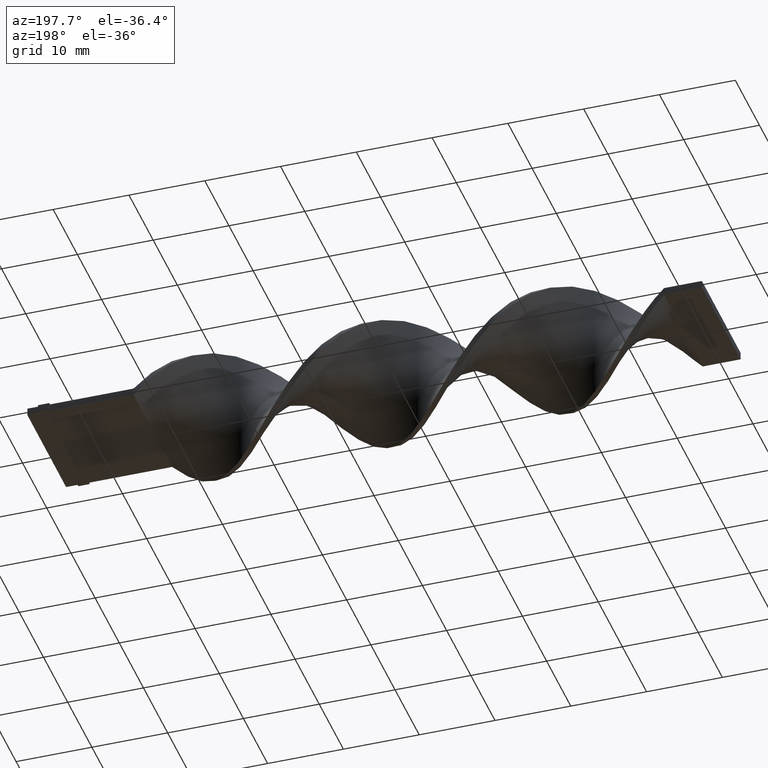
[diagram: clean part render]
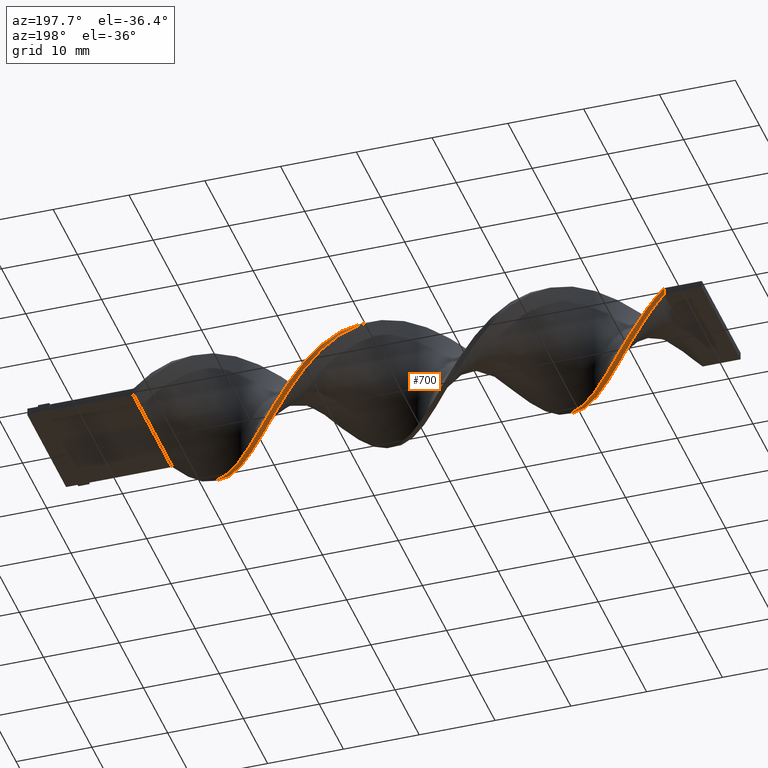
[diagram: same view with one face highlighted and labeled with its STEP entity id]
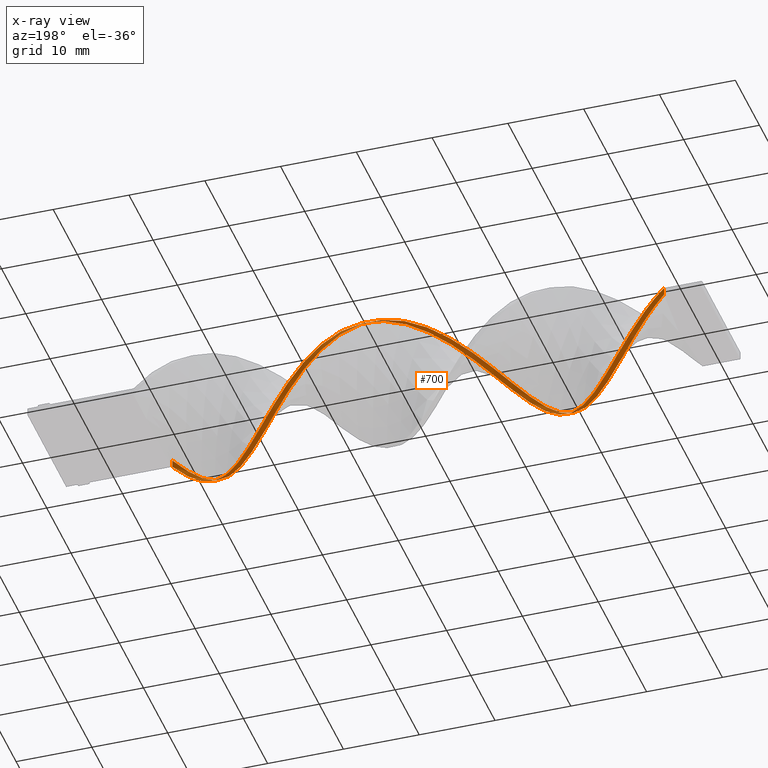
[diagram: x-ray of the same camera — body ghosted, the highlighted face saturated]
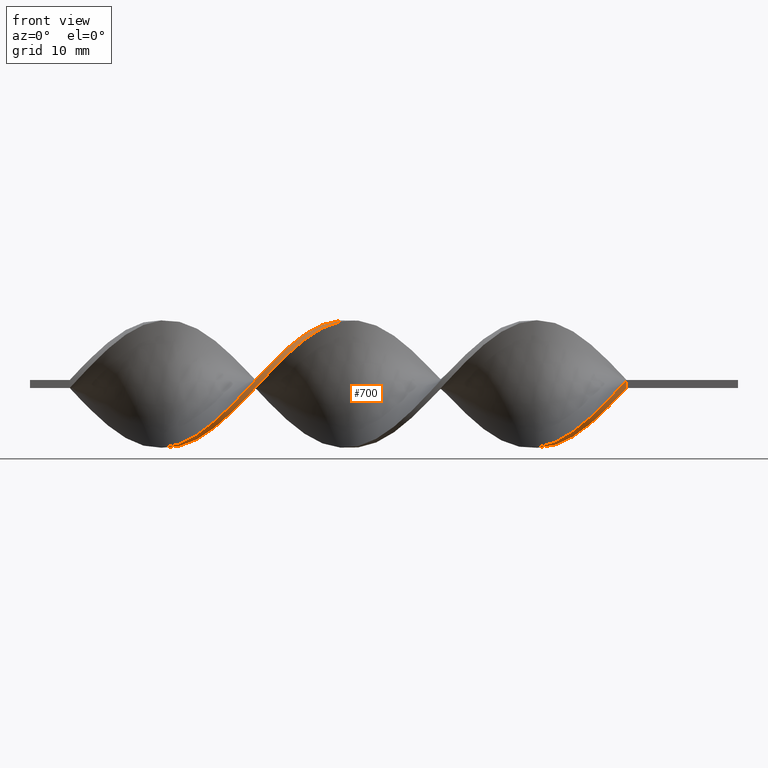
[diagram: same view with one face highlighted and labeled with its STEP entity id]
A machine part, auxiliary view. The second image highlights one B-rep face of the part: STEP entity #700.
The next image is the same camera in x-ray: the body ghosted, the highlighted face saturated — about 5% of this face is hidden behind the body in this view.
A second angle (front view) of the same face is appended — the face is thin or edge-on in the first view.
In plain terms, the highlighted face is a freeform B-spline surface patch.
Its self-contained STEP definition (entity closure, byte-faithful):
#3 = CARTESIAN_POINT ( 'NONE',  ( -54.38461538461538680, -4.966940480229633081, 6.366063081919214106 ) ) ;
#6 =( BOUNDED_CURVE ( )  B_SPLINE_CURVE ( 2, ( #1060, #1177, #458, #1305, #667, #1043, #75, #1443, #1298, #930, #185, #1552, #1533, #685, #1412, #180, #940, #296, #331, #1546, #679, #814, #1189, #1049, #62, #790, #574, #1055, #310, #1311, #49, #795, #1560, #1293, #175, #920, #1422, #1318, #1181, #557, #68, #444, #663, #449, #925, #799, #566, #320, #1196, #546, #805, #1072, #1240, #695, #95, #1215, #726, #593, #237, #1226, #972, #228, #1205, #734, #827, #707, #352, #102, #1603, #471, #1339, #119, #848, #580, #1092, #1460, #863, #857, #1120 ),
 .UNSPECIFIED., .F., .T. ) 
 B_SPLINE_CURVE_WITH_KNOTS ( ( 3, 2, 2, 2, 2, 2, 2, 2, 2, 2, 2, 2, 2, 2, 2, 2, 2, 2, 2, 2, 2, 2, 2, 2, 2, 2, 2, 2, 2, 2, 2, 2, 2, 2, 2, 2, 2, 2, 2, 3 ),
 ( 0.000000000000000000, 0.01923076923076923184, 0.03846153846153846367, 0.05769230769230768857, 0.07692307692307692735, 0.09615384615384615918, 0.1153846153846153771, 0.1346153846153846090, 0.1538461538461538547, 0.1730769230769230449, 0.1923076923076923184, 0.2115384615384615363, 0.2307692307692307543, 0.2500000000000000000, 0.2692307692307692180, 0.2884615384615384359, 0.3076923076923077094, 0.3269230769230769273, 0.3461538461538460898, 0.3653846153846153633, 0.3846153846153846367, 0.4038461538461539102, 0.4230769230769230727, 0.4423076923076922906, 0.4615384615384615086, 0.4807692307692307820, 0.5000000000000000000, 0.5192307692307692735, 0.5384615384615384359, 0.5576923076923077094, 0.5769230769230768718, 0.5961538461538461453, 0.6153846153846154188, 0.6346153846153845812, 0.6538461538461538547, 0.6730769230769230171, 0.6923076923076921796, 0.7115384615384615641, 0.7307692307692307265, 0.7500000000000000000 ),
 .UNSPECIFIED. ) 
 CURVE ( )  GEOMETRIC_REPRESENTATION_ITEM ( )  RATIONAL_B_SPLINE_CURVE ( ( 1.000000000000000000, 0.9927088740980539727, 1.000000000000000000, 0.9927088740980539727, 1.000000000000000000, 0.9927088740980539727, 1.000000000000000000, 0.9927088740980539727, 1.000000000000000000, 0.9927088740980539727, 1.000000000000000000, 0.9927088740980539727, 1.000000000000000000, 0.9927088740980539727, 1.000000000000000000, 0.9927088740980539727, 1.000000000000000000, 0.9927088740980539727, 1.000000000000000000, 0.9927088740980539727, 1.000000000000000000, 0.9927088740980539727, 1.000000000000000000, 0.9927088740980539727, 1.000000000000000000, 0.9927088740980539727, 1.000000000000000000, 0.9927088740980539727, 1.000000000000000000, 0.9927088740980539727, 1.000000000000000000, 0.9927088740980539727, 1.000000000000000000, 0.9927088740980539727, 1.000000000000000000, 0.9927088740980539727, 1.000000000000000000, 0.9927088740980539727, 1.000000000000000000, 0.9927088740980539727, 1.000000000000000000, 0.9927088740980539727, 1.000000000000000000, 0.9927088740980539727, 1.000000000000000000, 0.9927088740980539727, 1.000000000000000000, 0.9927088740980539727, 1.000000000000000000, 0.9927088740980539727, 1.000000000000000000, 0.9927088740980539727, 1.000000000000000000, 0.9927088740980539727, 1.000000000000000000, 0.9927088740980539727, 1.000000000000000000, 0.9927088740980539727, 1.000000000000000000, 0.9927088740980539727, 1.000000000000000000, 0.9927088740980539727, 1.000000000000000000, 0.9927088740980539727, 1.000000000000000000, 0.9927088740980539727, 1.000000000000000000, 0.9927088740980539727, 1.000000000000000000, 0.9927088740980539727, 1.000000000000000000, 0.9927088740980539727, 1.000000000000000000, 0.9927088740980539727, 1.000000000000000000, 0.9927088740980539727, 1.000000000000000000, 0.9927088740980539727, 1.000000000000000000 ) ) 
 REPRESENTATION_ITEM ( '' )  );
#8 = CARTESIAN_POINT ( 'NONE',  ( -23.87179487179487580, -1.439550348419958326, -7.945121250898724341 ) ) ;
#17 = CARTESIAN_POINT ( 'NONE',  ( -42.71794871794872250, 5.656524656248411276, 5.679236640011910531 ) ) ;
#20 = ORIENTED_EDGE ( 'NONE', *, *, #406, .T. ) ;
#23 = CARTESIAN_POINT ( 'NONE',  ( -71.43589743589743080, -1.460647879091614421, -7.881402652656771757 ) ) ;
#27 = CARTESIAN_POINT ( 'NONE',  ( -79.51282051282051100, 6.918345831001864177, -4.163381781650299374 ) ) ;
#36 = CARTESIAN_POINT ( 'NONE',  ( -71.43589743589743080, -0.4679390049935603924, -8.001939332912092695 ) ) ;
#46 = CARTESIAN_POINT ( 'NONE',  ( -41.82051282051281760, 6.346108832267184141, 4.992410198104613173 ) ) ;
#49 = CARTESIAN_POINT ( 'NONE',  ( -40.92307692307691980, 6.851286619203793116, 4.160513389176752952 ) ) ;
#54 = CARTESIAN_POINT ( 'NONE',  ( -50.79487179487178850, -2.417623419750380087, 7.704047890388079800 ) ) ;
#60 = CARTESIAN_POINT ( 'NONE',  ( -69.64102564102564941, -3.304347217682995108, -7.302827497962049996 ) ) ;
#62 = CARTESIAN_POINT ( 'NONE',  ( -35.53846153846153300, 7.887192371552193215, -1.429054405587439014 ) ) ;
#67 = CARTESIAN_POINT ( 'NONE',  ( -45.41025641025640880, 4.191071015615606576, 6.901607105536021081 ) ) ;
#68 = CARTESIAN_POINT ( 'NONE',  ( -49.89743589743589069, -1.460647879091607093, 7.881402652656771757 ) ) ;
#72 = CARTESIAN_POINT ( 'NONE',  ( -57.07692307692307310, -6.851286619203794004, 4.160513389176759169 ) ) ;
#75 = CARTESIAN_POINT ( 'NONE',  ( -19.38461538461538325, -5.656524656248413940, -5.679236640011911419 ) ) ;
#81 = CARTESIAN_POINT ( 'NONE',  ( -48.10256410256410220, 1.460647879091613976, 7.881402652656769980 ) ) ;
#87 = CARTESIAN_POINT ( 'NONE',  ( -31.94871794871794535, 5.656524656248407723, -5.679236640011914083 ) ) ;
#90 = CARTESIAN_POINT ( 'NONE',  ( -74.12820512820512420, 1.439550348419954551, -7.945121250898724341 ) ) ;
#95 = CARTESIAN_POINT ( 'NONE',  ( -62.46153846153845990, -7.647876707264638974, -2.399996223013487917 ) ) ;
#96 = CARTESIAN_POINT ( 'NONE',  ( -29.25641025641025905, 3.299111601575197117, -7.369743519110448560 ) ) ;
#102 = CARTESIAN_POINT ( 'NONE',  ( -74.12820512820510999, 2.417623419750379643, -7.704047890388078912 ) ) ;
#105 = CARTESIAN_POINT ( 'NONE',  ( -38.23076923076922640, 8.060710991611129472, 0.4713758657780824923 ) ) ;
#112 = CARTESIAN_POINT ( 'NONE',  ( -20.28205128205128460, -5.720948797976549649, -5.698070002031323078 ) ) ;
#119 = CARTESIAN_POINT ( 'NONE',  ( -77.71794871794874382, 5.720948797976543432, -5.698070002031325743 ) ) ;
#128 = CARTESIAN_POINT ( 'NONE',  ( -55.28205128205128460, -5.656524656248410388, 5.679236640011914972 ) ) ;
#130 = CARTESIAN_POINT ( 'NONE',  ( -83.10256410256410220, 7.939289008388867863, -1.471375865778087988 ) ) ;
#134 = CARTESIAN_POINT ( 'NONE',  ( -52.58974358974359120, -3.299111601575195785, 7.369743519110449448 ) ) ;
#139 = CARTESIAN_POINT ( 'NONE',  ( -36.43589743589743790, 8.060710991611127696, -0.4713758657780879879 ) ) ;
#148 = CARTESIAN_POINT ( 'NONE',  ( -81.30769230769233502, 7.713673751493258735, -2.386732945396789596 ) ) ;
#150 = CARTESIAN_POINT ( 'NONE',  ( -73.23076923076924061, 0.4679390049935545082, -8.001939332912092695 ) ) ;
#151 = CARTESIAN_POINT ( 'NONE',  ( -13.99999999999999645, -8.000000000000001776, -0.5000000000000000000 ) ) ;
#154 = CARTESIAN_POINT ( 'NONE',  ( -49.89743589743589069, -1.460647879091607093, 7.881402652656771757 ) ) ;
#157 = CARTESIAN_POINT ( 'NONE',  ( -63.35897435897436480, -7.713673751493262287, -2.386732945396787375 ) ) ;
#161 = CARTESIAN_POINT ( 'NONE',  ( -58.87179487179486870, -7.887192371552194992, 1.429054405587443455 ) ) ;
#173 = CARTESIAN_POINT ( 'NONE',  ( -22.07692307692308376, -4.191071015615605688, -6.901607105536023745 ) ) ;
#175 = CARTESIAN_POINT ( 'NONE',  ( -44.51282051282051100, 4.133026040902417542, 6.867903300514829112 ) ) ;
#178 = CARTESIAN_POINT ( 'NONE',  ( -65.15384615384614619, -6.918345831001868618, -4.163381781650298485 ) ) ;
#180 = CARTESIAN_POINT ( 'NONE',  ( -27.46153846153846345, 2.417623419750379643, -7.704047890388078912 ) ) ;
#183 = CARTESIAN_POINT ( 'NONE',  ( -40.02564102564102200, 7.713673751493259623, 2.386732945396784711 ) ) ;
#185 = CARTESIAN_POINT ( 'NONE',  ( -22.97435897435897090, -2.369330974997580164, -7.657432385004585562 ) ) ;
#189 = CARTESIAN_POINT ( 'NONE',  ( -56.17948717948717530, -6.346108832267185917, 4.992410198104615837 ) ) ;
#198 = CARTESIAN_POINT ( 'NONE',  ( -42.71794871794872250, 6.319647314489206913, 4.930725891840809894 ) ) ;
#206 = CARTESIAN_POINT ( 'NONE',  ( -73.23076923076924061, 0.4679390049935545082, -8.001939332912092695 ) ) ;
#222 = CARTESIAN_POINT ( 'NONE',  ( -16.69230769230769340, -7.713673751493262287, -2.386732945396787375 ) ) ;
#228 = CARTESIAN_POINT ( 'NONE',  ( -68.74358974358973740, -3.299111601575200670, -7.369743519110448560 ) ) ;
#233 = CARTESIAN_POINT ( 'NONE',  ( -17.58974358974358765, -6.851286619203796668, -4.160513389176752952 ) ) ;
#237 = CARTESIAN_POINT ( 'NONE',  ( -66.05128205128204399, -5.656524656248413940, -5.679236640011911419 ) ) ;
#247 = CARTESIAN_POINT ( 'NONE',  ( -44.51282051282051100, 4.956009906796073672, 6.299838553783672523 ) ) ;
#256 = CARTESIAN_POINT ( 'NONE',  ( -78.61538461538461320, 5.656524656248407723, -5.679236640011914083 ) ) ;
#258 = CARTESIAN_POINT ( 'NONE',  ( -84.00000000000000000, 7.999999999999998224, -0.5000000000000009992 ) ) ;
#259 = VERTEX_POINT ( 'NONE', #1579 ) ;
#261 = CARTESIAN_POINT ( 'NONE',  ( -34.64102564102564230, 7.713673751493258735, -2.386732945396789596 ) ) ;
#265 = LINE ( 'NONE', #1035, #411 ) ;
#268 = CARTESIAN_POINT ( 'NONE',  ( -80.41025641025640880, 7.316009791247561012, -3.275057363523544041 ) ) ;
#272 = CARTESIAN_POINT ( 'NONE',  ( -64.25641025641024839, -7.316009791247564564, -3.275057363523542708 ) ) ;
#277 = CARTESIAN_POINT ( 'NONE',  ( -54.38461538461538680, -5.720948797976542544, 5.698070002031328407 ) ) ;
#280 = CARTESIAN_POINT ( 'NONE',  ( -49.00000000000000000, 0.5036723384328414266, 8.058757414925462825 ) ) ;
#284 = CARTESIAN_POINT ( 'NONE',  ( -21.17948717948717885, -4.956009906796077225, -6.299838553783672523 ) ) ;
#293 = CARTESIAN_POINT ( 'NONE',  ( -22.97435897435897090, -3.304347217682995108, -7.302827497962049996 ) ) ;
#296 = CARTESIAN_POINT ( 'NONE',  ( -29.25641025641025905, 4.191071015615602136, -6.901607105536022857 ) ) ;
#302 = CARTESIAN_POINT ( 'NONE',  ( -72.33333333333332860, 0.5036723384328395392, -8.058757414925462825 ) ) ;
#308 = CARTESIAN_POINT ( 'NONE',  ( -26.56410256410256210, 0.4679390049935545082, -8.001939332912092695 ) ) ;
#310 = CARTESIAN_POINT ( 'NONE',  ( -39.12820512820512420, 7.647876707264636309, 2.399996223013485697 ) ) ;
#317 = CARTESIAN_POINT ( 'NONE',  ( -38.23076923076922640, 8.060710991611127696, 0.4713758657780824923 ) ) ;
#320 = CARTESIAN_POINT ( 'NONE',  ( -56.17948717948717530, -6.918345831001868618, 4.163381781650300262 ) ) ;
#327 = CARTESIAN_POINT ( 'NONE',  ( -72.33333333333332860, -0.5036723384328435360, -8.058757414925462825 ) ) ;
#331 = CARTESIAN_POINT ( 'NONE',  ( -30.15384615384615330, 4.956009906796071895, -6.299838553783673412 ) ) ;
#339 = CARTESIAN_POINT ( 'NONE',  ( -70.53846153846153300, -2.417623419750383640, -7.704047890388077136 ) ) ;
#345 = CARTESIAN_POINT ( 'NONE',  ( -22.07692307692308020, -4.191071015615605688, -6.901607105536022857 ) ) ;
#349 = CARTESIAN_POINT ( 'NONE',  ( -29.25641025641025905, 3.299111601575197561, -7.369743519110448560 ) ) ;
#352 = CARTESIAN_POINT ( 'NONE',  ( -73.23076923076924061, 1.460647879091608647, -7.881402652656771757 ) ) ;
#364 = CARTESIAN_POINT ( 'NONE',  ( -23.87179487179487580, -2.417623419750383640, -7.704047890388078024 ) ) ;
#368 = CARTESIAN_POINT ( 'NONE',  ( -15.79487179487179205, -7.647876707264638974, -2.399996223013487917 ) ) ;
#371 = CARTESIAN_POINT ( 'NONE',  ( -32.84615384615384670, 6.346108832267182365, -4.992410198104614949 ) ) ;
#375 = CARTESIAN_POINT ( 'NONE',  ( -24.76923076923076650, -0.4679390049935603924, -8.001939332912092695 ) ) ;
#383 = CARTESIAN_POINT ( 'NONE',  ( -27.46153846153846345, 2.417623419750379643, -7.704047890388078024 ) ) ;
#387 = CARTESIAN_POINT ( 'NONE',  ( -65.15384615384614619, -6.918345831001869506, -4.163381781650298485 ) ) ;
#393 = CARTESIAN_POINT ( 'NONE',  ( -14.89743589743589602, -7.939289008388871416, -1.471375865778084213 ) ) ;
#395 = CARTESIAN_POINT ( 'NONE',  ( -43.61538461538461320, 5.720948797976546985, 5.698070002031321302 ) ) ;
#400 = CARTESIAN_POINT ( 'NONE',  ( -70.53846153846153300, -1.439550348419958326, -7.945121250898724341 ) ) ;
#403 = CARTESIAN_POINT ( 'NONE',  ( -45.41025641025640880, 4.191071015615606576, 6.901607105536020192 ) ) ;
#406 = EDGE_CURVE ( 'NONE', #839, #418, #768, .T. ) ;
#407 = CARTESIAN_POINT ( 'NONE',  ( -76.82051282051281760, 4.956009906796071895, -6.299838553783673412 ) ) ;
#411 = VECTOR ( 'NONE', #762, 1000.000000000000000 ) ;
#416 = CARTESIAN_POINT ( 'NONE',  ( -17.58974358974358765, -7.316009791247564564, -3.275057363523542708 ) ) ;
#418 = VERTEX_POINT ( 'NONE', #632 ) ;
#424 = CARTESIAN_POINT ( 'NONE',  ( -48.10256410256410220, 0.4679390049935600593, 8.001939332912094471 ) ) ;
#434 = CARTESIAN_POINT ( 'NONE',  ( -19.38461538461538325, -6.319647314489209577, -4.930725891840810782 ) ) ;
#442 = CARTESIAN_POINT ( 'NONE',  ( -27.46153846153846345, 1.439550348419954551, -7.945121250898724341 ) ) ;
#444 = CARTESIAN_POINT ( 'NONE',  ( -50.79487179487178850, -2.417623419750380087, 7.704047890388080688 ) ) ;
#447 = EDGE_CURVE ( 'NONE', #839, #1121, #265, .T. ) ;
#448 = CARTESIAN_POINT ( 'NONE',  ( -58.87179487179486870, -7.647876707264636309, 2.399996223013495467 ) ) ;
#449 = CARTESIAN_POINT ( 'NONE',  ( -52.58974358974359120, -4.191071015615600359, 6.901607105536025522 ) ) ;
#455 = CARTESIAN_POINT ( 'NONE',  ( -76.82051282051281760, 4.133026040902415765, -6.867903300514830001 ) ) ;
#458 = CARTESIAN_POINT ( 'NONE',  ( -15.79487179487179205, -7.647876707264638974, -2.399996223013487917 ) ) ;
#465 = CARTESIAN_POINT ( 'NONE',  ( -36.43589743589743790, 7.939289008388867863, -1.471375865778087988 ) ) ;
#471 = CARTESIAN_POINT ( 'NONE',  ( -75.92307692307691980, 4.191071015615602136, -6.901607105536022857 ) ) ;
#473 = CARTESIAN_POINT ( 'NONE',  ( -40.02564102564102200, 7.713673751493259623, 2.386732945396784711 ) ) ;
#475 = CARTESIAN_POINT ( 'NONE',  ( -75.92307692307693401, 3.299111601575197561, -7.369743519110448560 ) ) ;
#488 = CARTESIAN_POINT ( 'NONE',  ( -31.05128205128205465, 4.966940480229633970, -6.366063081919211442 ) ) ;
#497 = CARTESIAN_POINT ( 'NONE',  ( -21.17948717948717885, -4.133026040902421094, -6.867903300514829112 ) ) ;
#499 = CARTESIAN_POINT ( 'NONE',  ( -39.12820512820512420, 7.887192371552193215, 1.429054405587433463 ) ) ;
#506 = CARTESIAN_POINT ( 'NONE',  ( -59.76923076923076650, -7.939289008388871416, 1.471375865778089098 ) ) ;
#512 = CARTESIAN_POINT ( 'NONE',  ( -30.15384615384615330, 4.956009906796071895, -6.299838553783673412 ) ) ;
#519 = CARTESIAN_POINT ( 'NONE',  ( -59.76923076923077360, -8.060710991611131249, 0.4713758657780888761 ) ) ;
#522 = CARTESIAN_POINT ( 'NONE',  ( -79.51282051282051100, 6.346108832267182365, -4.992410198104614949 ) ) ;
#527 = CARTESIAN_POINT ( 'NONE',  ( -83.10256410256410220, 8.060710991611127696, -0.4713758657780879879 ) ) ;
#528 = CARTESIAN_POINT ( 'NONE',  ( -72.33333333333332860, -0.5036723384328435360, -8.058757414925462825 ) ) ;
#532 = CARTESIAN_POINT ( 'NONE',  ( -13.99999999999999645, -8.000000000000001776, 0.5000000000000000000 ) ) ;
#534 = CARTESIAN_POINT ( 'NONE',  ( -47.20512820512820440, 1.439550348419954995, 7.945121250898724341 ) ) ;
#537 = CARTESIAN_POINT ( 'NONE',  ( -80.41025641025640880, 6.851286619203792227, -4.160513389176754728 ) ) ;
#540 = CARTESIAN_POINT ( 'NONE',  ( -84.00000000000000000, 7.999999999999998224, 0.1666666666666657137 ) ) ;
#541 = CARTESIAN_POINT ( 'NONE',  ( -65.15384615384614619, -6.346108832267186806, -4.992410198104614061 ) ) ;
#546 = CARTESIAN_POINT ( 'NONE',  ( -57.97435897435897090, -7.713673751493261399, 2.386732945396790928 ) ) ;
#549 = CARTESIAN_POINT ( 'NONE',  ( -64.25641025641024839, -6.851286619203796668, -4.160513389176752952 ) ) ;
#554 = CARTESIAN_POINT ( 'NONE',  ( -25.66666666666666785, -0.5036723384328435360, -8.058757414925462825 ) ) ;
#557 = CARTESIAN_POINT ( 'NONE',  ( -49.00000000000000000, -0.5036723384328414266, 8.058757414925462825 ) ) ;
#564 = CARTESIAN_POINT ( 'NONE',  ( -47.20512820512820440, 2.417623419750379643, 7.704047890388078024 ) ) ;
#566 = CARTESIAN_POINT ( 'NONE',  ( -55.28205128205128460, -6.319647314489206025, 4.930725891840814334 ) ) ;
#571 = CARTESIAN_POINT ( 'NONE',  ( -67.84615384615385381, -4.956009906796077225, -6.299838553783672523 ) ) ;
#574 = CARTESIAN_POINT ( 'NONE',  ( -37.33333333333332860, 7.999999999999998224, 0.4999999999999990563 ) ) ;
#578 = CARTESIAN_POINT ( 'NONE',  ( -35.53846153846153300, 7.647876707264634533, -2.399996223013490582 ) ) ;
#580 = CARTESIAN_POINT ( 'NONE',  ( -79.51282051282051100, 6.918345831001865065, -4.163381781650299374 ) ) ;
#582 = EDGE_LOOP ( 'NONE', ( #1502, #20, #622, #1358 ) ) ;
#583 = CARTESIAN_POINT ( 'NONE',  ( -24.76923076923076650, -1.460647879091614421, -7.881402652656771757 ) ) ;
#586 = B_SPLINE_CURVE_WITH_KNOTS ( 'NONE', 3,
 ( #665, #540, #1037, #258 ),
 .UNSPECIFIED., .F., .F.,
 ( 4, 4 ),
 ( 0.000000000000000000, 1.000000000000000000 ),
 .UNSPECIFIED. ) ;
#589 = CARTESIAN_POINT ( 'NONE',  ( -75.02564102564102200, 2.369330974997575279, -7.657432385004585562 ) ) ;
#593 = CARTESIAN_POINT ( 'NONE',  ( -65.15384615384614619, -6.346108832267186806, -4.992410198104614061 ) ) ;
#594 = CARTESIAN_POINT ( 'NONE',  ( -25.66666666666666785, -0.5036723384328435360, -8.058757414925462825 ) ) ;
#601 = CARTESIAN_POINT ( 'NONE',  ( -40.92307692307691980, 7.316009791247561012, 3.275057363523542264 ) ) ;
#622 = ORIENTED_EDGE ( 'NONE', *, *, #895, .F. ) ;
#624 = CARTESIAN_POINT ( 'NONE',  ( -57.07692307692307310, -6.851286619203794004, 4.160513389176759169 ) ) ;
#632 = CARTESIAN_POINT ( 'NONE',  ( -84.00000000000000000, 7.999999999999998224, -0.5000000000000009992 ) ) ;
#636 = CARTESIAN_POINT ( 'NONE',  ( -75.02564102564102200, 3.304347217682989779, -7.302827497962051773 ) ) ;
#642 = CARTESIAN_POINT ( 'NONE',  ( -74.12820512820510999, 1.439550348419954551, -7.945121250898725229 ) ) ;
#646 = CARTESIAN_POINT ( 'NONE',  ( -67.84615384615385381, -4.133026040902421094, -6.867903300514829112 ) ) ;
#648 = CARTESIAN_POINT ( 'NONE',  ( -81.30769230769232081, 7.356464406140403867, -3.328616580248894508 ) ) ;
#652 = CARTESIAN_POINT ( 'NONE',  ( -61.56410256410256920, -7.939289008388871416, -1.471375865778084213 ) ) ;
#660 = CARTESIAN_POINT ( 'NONE',  ( -38.23076923076922640, 7.939289008388867863, 1.471375865778082659 ) ) ;
#663 = CARTESIAN_POINT ( 'NONE',  ( -51.69230769230769340, -3.304347217682993332, 7.302827497962050884 ) ) ;
#665 = CARTESIAN_POINT ( 'NONE',  ( -84.00000000000000000, 7.999999999999998224, 0.4999999999999990563 ) ) ;
#666 = CARTESIAN_POINT ( 'NONE',  ( -23.87179487179487580, -2.417623419750383640, -7.704047890388077136 ) ) ;
#667 = CARTESIAN_POINT ( 'NONE',  ( -17.58974358974358765, -6.851286619203796668, -4.160513389176752952 ) ) ;
#670 = CARTESIAN_POINT ( 'NONE',  ( -81.30769230769233502, 7.356464406140402978, -3.328616580248894952 ) ) ;
#678 = CARTESIAN_POINT ( 'NONE',  ( -31.05128205128205821, 4.966940480229633970, -6.366063081919212330 ) ) ;
#679 = CARTESIAN_POINT ( 'NONE',  ( -31.94871794871794535, 6.319647314489203360, -4.930725891840813446 ) ) ;
#683 = CARTESIAN_POINT ( 'NONE',  ( -59.76923076923077360, -7.939289008388871416, 1.471375865778089098 ) ) ;
#685 = CARTESIAN_POINT ( 'NONE',  ( -25.66666666666666785, 0.5036723384328395392, -8.058757414925462825 ) ) ;
#690 = CARTESIAN_POINT ( 'NONE',  ( -31.94871794871794535, 5.656524656248407723, -5.679236640011914083 ) ) ;
#695 = CARTESIAN_POINT ( 'NONE',  ( -61.56410256410256920, -7.939289008388871416, -1.471375865778084213 ) ) ;
#698 = CARTESIAN_POINT ( 'NONE',  ( -36.43589743589743790, 7.939289008388867863, -1.471375865778087988 ) ) ;
#700 = ADVANCED_FACE ( 'NONE', ( #981 ), #1008, .T. ) ;
#702 = CARTESIAN_POINT ( 'NONE',  ( -53.48717948717948900, -4.133026040902418430, 6.867903300514830889 ) ) ;
#707 = CARTESIAN_POINT ( 'NONE',  ( -72.33333333333332860, 0.5036723384328395392, -8.058757414925462825 ) ) ;
#708 = CARTESIAN_POINT ( 'NONE',  ( -14.89743589743589602, -8.060710991611133025, -0.4713758657780842132 ) ) ;
#726 = CARTESIAN_POINT ( 'NONE',  ( -64.25641025641024839, -6.851286619203796668, -4.160513389176752952 ) ) ;
#728 = CARTESIAN_POINT ( 'NONE',  ( -13.99999999999999645, -8.000000000000001776, 0.5000000000000000000 ) ) ;
#730 = CARTESIAN_POINT ( 'NONE',  ( -84.00000000000000000, 7.999999999999998224, -0.5000000000000009992 ) ) ;
#732 = CARTESIAN_POINT ( 'NONE',  ( -18.48717948717948545, -6.346108832267186806, -4.992410198104614061 ) ) ;
#734 = CARTESIAN_POINT ( 'NONE',  ( -70.53846153846153300, -1.439550348419958103, -7.945121250898725229 ) ) ;
#736 = CARTESIAN_POINT ( 'NONE',  ( -18.48717948717948545, -6.918345831001869506, -4.163381781650298485 ) ) ;
#742 = CARTESIAN_POINT ( 'NONE',  ( -28.35897435897435770, 3.304347217682989779, -7.302827497962051773 ) ) ;
#747 = CARTESIAN_POINT ( 'NONE',  ( -51.69230769230769340, -2.369330974997578387, 7.657432385004586450 ) ) ;
#756 = CARTESIAN_POINT ( 'NONE',  ( -82.20512820512820440, 7.647876707264634533, -2.399996223013490582 ) ) ;
#761 = CARTESIAN_POINT ( 'NONE',  ( -35.53846153846153300, 7.887192371552193215, -1.429054405587439014 ) ) ;
#762 = DIRECTION ( 'NONE',  ( -0.000000000000000000, -0.000000000000000000, -1.000000000000000000 ) ) ;
#766 = CARTESIAN_POINT ( 'NONE',  ( -57.97435897435897090, -7.713673751493261399, 2.386732945396790484 ) ) ;
#768 =( BOUNDED_CURVE ( )  B_SPLINE_CURVE ( 2, ( #728, #708, #858, #222, #1593, #736, #836, #112, #953, #345, #1234, #364, #583, #594, #1115, #1343, #828, #96, #1573, #488, #87, #371, #1122, #1095, #986, #698, #1241, #105, #499, #473, #601, #975, #1322, #395, #247, #403, #1507, #1514, #891, #280, #1015, #1367, #747, #134, #1251, #3, #128, #1130, #624, #1390, #776, #506, #1146, #769, #872, #157, #272, #387, #998, #1400, #1158, #1278, #1273, #1497, #23, #528, #150, #642, #1374, #883, #1150, #1139, #256, #522, #537, #648, #756, #1384, #1258 ),
 .UNSPECIFIED., .F., .T. ) 
 B_SPLINE_CURVE_WITH_KNOTS ( ( 3, 2, 2, 2, 2, 2, 2, 2, 2, 2, 2, 2, 2, 2, 2, 2, 2, 2, 2, 2, 2, 2, 2, 2, 2, 2, 2, 2, 2, 2, 2, 2, 2, 2, 2, 2, 2, 2, 2, 3 ),
 ( 0.000000000000000000, 0.01923076923076923184, 0.03846153846153846367, 0.05769230769230768857, 0.07692307692307692735, 0.09615384615384615918, 0.1153846153846153771, 0.1346153846153846090, 0.1538461538461538547, 0.1730769230769230449, 0.1923076923076923184, 0.2115384615384615363, 0.2307692307692307543, 0.2500000000000000000, 0.2692307692307692180, 0.2884615384615384359, 0.3076923076923077094, 0.3269230769230769273, 0.3461538461538460898, 0.3653846153846153633, 0.3846153846153846367, 0.4038461538461539102, 0.4230769230769230727, 0.4423076923076922906, 0.4615384615384615086, 0.4807692307692307820, 0.5000000000000000000, 0.5192307692307692735, 0.5384615384615384359, 0.5576923076923077094, 0.5769230769230768718, 0.5961538461538461453, 0.6153846153846154188, 0.6346153846153845812, 0.6538461538461538547, 0.6730769230769230171, 0.6923076923076921796, 0.7115384615384615641, 0.7307692307692307265, 0.7500000000000000000 ),
 .UNSPECIFIED. ) 
 CURVE ( )  GEOMETRIC_REPRESENTATION_ITEM ( )  RATIONAL_B_SPLINE_CURVE ( ( 1.000000000000000000, 0.9927088740980539727, 1.000000000000000000, 0.9927088740980539727, 1.000000000000000000, 0.9927088740980539727, 1.000000000000000000, 0.9927088740980539727, 1.000000000000000000, 0.9927088740980539727, 1.000000000000000000, 0.9927088740980539727, 1.000000000000000000, 0.9927088740980539727, 1.000000000000000000, 0.9927088740980539727, 1.000000000000000000, 0.9927088740980539727, 1.000000000000000000, 0.9927088740980539727, 1.000000000000000000, 0.9927088740980539727, 1.000000000000000000, 0.9927088740980539727, 1.000000000000000000, 0.9927088740980539727, 1.000000000000000000, 0.9927088740980539727, 1.000000000000000000, 0.9927088740980539727, 1.000000000000000000, 0.9927088740980539727, 1.000000000000000000, 0.9927088740980539727, 1.000000000000000000, 0.9927088740980539727, 1.000000000000000000, 0.9927088740980539727, 1.000000000000000000, 0.9927088740980539727, 1.000000000000000000, 0.9927088740980539727, 1.000000000000000000, 0.9927088740980539727, 1.000000000000000000, 0.9927088740980539727, 1.000000000000000000, 0.9927088740980539727, 1.000000000000000000, 0.9927088740980539727, 1.000000000000000000, 0.9927088740980539727, 1.000000000000000000, 0.9927088740980539727, 1.000000000000000000, 0.9927088740980539727, 1.000000000000000000, 0.9927088740980539727, 1.000000000000000000, 0.9927088740980539727, 1.000000000000000000, 0.9927088740980539727, 1.000000000000000000, 0.9927088740980539727, 1.000000000000000000, 0.9927088740980539727, 1.000000000000000000, 0.9927088740980539727, 1.000000000000000000, 0.9927088740980539727, 1.000000000000000000, 0.9927088740980539727, 1.000000000000000000, 0.9927088740980539727, 1.000000000000000000, 0.9927088740980539727, 1.000000000000000000, 0.9927088740980539727, 1.000000000000000000 ) ) 
 REPRESENTATION_ITEM ( '' )  );
#769 = CARTESIAN_POINT ( 'NONE',  ( -61.56410256410256920, -8.060710991611133025, -0.4713758657780842132 ) ) ;
#773 = CARTESIAN_POINT ( 'NONE',  ( -46.30769230769230660, 2.369330974997578387, 7.657432385004585562 ) ) ;
#776 = CARTESIAN_POINT ( 'NONE',  ( -58.87179487179486870, -7.647876707264636309, 2.399996223013495467 ) ) ;
#781 = CARTESIAN_POINT ( 'NONE',  ( -62.46153846153845990, -7.647876707264638974, -2.399996223013487917 ) ) ;
#787 = CARTESIAN_POINT ( 'NONE',  ( -63.35897435897435770, -7.356464406140408308, -3.328616580248892287 ) ) ;
#790 = CARTESIAN_POINT ( 'NONE',  ( -36.43589743589743790, 8.060710991611129472, -0.4713758657780879324 ) ) ;
#794 = CARTESIAN_POINT ( 'NONE',  ( -40.02564102564102200, 7.356464406140404755, 3.328616580248889179 ) ) ;
#795 = CARTESIAN_POINT ( 'NONE',  ( -41.82051282051281760, 6.346108832267184141, 4.992410198104613173 ) ) ;
#798 = CARTESIAN_POINT ( 'NONE',  ( -32.84615384615384670, 6.346108832267182365, -4.992410198104614949 ) ) ;
#799 = CARTESIAN_POINT ( 'NONE',  ( -54.38461538461538680, -5.720948797976542544, 5.698070002031327519 ) ) ;
#802 = CARTESIAN_POINT ( 'NONE',  ( -40.92307692307691980, 7.316009791247561012, 3.275057363523542264 ) ) ;
#805 = CARTESIAN_POINT ( 'NONE',  ( -58.87179487179486870, -7.887192371552194992, 1.429054405587443455 ) ) ;
#811 = CARTESIAN_POINT ( 'NONE',  ( -61.56410256410256920, -8.060710991611131249, -0.4713758657780842132 ) ) ;
#814 = CARTESIAN_POINT ( 'NONE',  ( -32.84615384615384670, 6.918345831001865065, -4.163381781650299374 ) ) ;
#822 = CARTESIAN_POINT ( 'NONE',  ( -33.74358974358974450, 6.851286619203792227, -4.160513389176754728 ) ) ;
#827 = CARTESIAN_POINT ( 'NONE',  ( -71.43589743589743080, -0.4679390049935603924, -8.001939332912092695 ) ) ;
#828 = CARTESIAN_POINT ( 'NONE',  ( -28.35897435897435770, 2.369330974997575279, -7.657432385004585562 ) ) ;
#831 = CARTESIAN_POINT ( 'NONE',  ( -49.89743589743589069, -0.4679390049935531204, 8.001939332912092695 ) ) ;
#836 = CARTESIAN_POINT ( 'NONE',  ( -19.38461538461538325, -6.319647314489209577, -4.930725891840810782 ) ) ;
#839 = VERTEX_POINT ( 'NONE', #532 ) ;
#848 = CARTESIAN_POINT ( 'NONE',  ( -78.61538461538461320, 6.319647314489203360, -4.930725891840813446 ) ) ;
#857 = CARTESIAN_POINT ( 'NONE',  ( -83.10256410256410220, 8.060710991611129472, -0.4713758657780879324 ) ) ;
#858 = CARTESIAN_POINT ( 'NONE',  ( -15.79487179487179205, -7.887192371552196768, -1.429054405587435905 ) ) ;
#863 = CARTESIAN_POINT ( 'NONE',  ( -82.20512820512820440, 7.887192371552193215, -1.429054405587439014 ) ) ;
#872 = CARTESIAN_POINT ( 'NONE',  ( -62.46153846153845990, -7.887192371552196768, -1.429054405587435905 ) ) ;
#878 = CARTESIAN_POINT ( 'NONE',  ( -32.84615384615384670, 6.918345831001864177, -4.163381781650299374 ) ) ;
#883 = CARTESIAN_POINT ( 'NONE',  ( -75.92307692307691980, 3.299111601575197117, -7.369743519110448560 ) ) ;
#887 = CARTESIAN_POINT ( 'NONE',  ( -49.00000000000000711, -0.5036723384328414266, 8.058757414925462825 ) ) ;
#891 = CARTESIAN_POINT ( 'NONE',  ( -48.10256410256410220, 1.460647879091613976, 7.881402652656769980 ) ) ;
#894 = CARTESIAN_POINT ( 'NONE',  ( -66.94871794871794179, -4.966940480229640187, -6.366063081919210553 ) ) ;
#895 = EDGE_CURVE ( 'NONE', #259, #418, #586, .T. ) ;
#903 = CARTESIAN_POINT ( 'NONE',  ( -13.99999999999999822, -8.000000000000001776, 0.5000000000000000000 ) ) ;
#908 = CARTESIAN_POINT ( 'NONE',  ( -84.00000000000000000, 7.999999999999998224, 0.4999999999999990563 ) ) ;
#916 = CARTESIAN_POINT ( 'NONE',  ( -77.71794871794872961, 5.720948797976543432, -5.698070002031325743 ) ) ;
#920 = CARTESIAN_POINT ( 'NONE',  ( -45.41025641025640880, 3.299111601575202446, 7.369743519110445895 ) ) ;
#923 = CARTESIAN_POINT ( 'NONE',  ( -30.15384615384615330, 4.133026040902415765, -6.867903300514830001 ) ) ;
#925 = CARTESIAN_POINT ( 'NONE',  ( -53.48717948717948900, -4.956009906796074560, 6.299838553783674300 ) ) ;
#929 = CARTESIAN_POINT ( 'NONE',  ( -63.35897435897435770, -7.713673751493262287, -2.386732945396786931 ) ) ;
#930 = CARTESIAN_POINT ( 'NONE',  ( -22.07692307692308020, -3.299111601575200670, -7.369743519110448560 ) ) ;
#935 = CARTESIAN_POINT ( 'NONE',  ( -77.71794871794872961, 4.966940480229633970, -6.366063081919212330 ) ) ;
#940 = CARTESIAN_POINT ( 'NONE',  ( -28.35897435897435770, 3.304347217682989779, -7.302827497962051773 ) ) ;
#947 = CARTESIAN_POINT ( 'NONE',  ( -51.69230769230769340, -2.369330974997578387, 7.657432385004586450 ) ) ;
#953 = CARTESIAN_POINT ( 'NONE',  ( -21.17948717948717885, -4.956009906796077225, -6.299838553783672523 ) ) ;
#956 = CARTESIAN_POINT ( 'NONE',  ( -79.51282051282051100, 6.346108832267182365, -4.992410198104614949 ) ) ;
#972 = CARTESIAN_POINT ( 'NONE',  ( -67.84615384615385381, -4.133026040902421094, -6.867903300514829112 ) ) ;
#975 = CARTESIAN_POINT ( 'NONE',  ( -41.82051282051281760, 6.918345831001866841, 4.163381781650297597 ) ) ;
#981 = FACE_OUTER_BOUND ( 'NONE', #582, .T. ) ;
#986 = CARTESIAN_POINT ( 'NONE',  ( -35.53846153846153300, 7.647876707264634533, -2.399996223013490582 ) ) ;
#995 = CARTESIAN_POINT ( 'NONE',  ( -22.07692307692308376, -3.299111601575200670, -7.369743519110448560 ) ) ;
#998 = CARTESIAN_POINT ( 'NONE',  ( -66.05128205128204399, -6.319647314489209577, -4.930725891840810782 ) ) ;
#1000 = CARTESIAN_POINT ( 'NONE',  ( -82.20512820512820440, 7.647876707264634533, -2.399996223013490582 ) ) ;
#1003 = CARTESIAN_POINT ( 'NONE',  ( -31.05128205128205821, 5.720948797976543432, -5.698070002031325743 ) ) ;
#1008 =( BOUNDED_SURFACE ( )  B_SPLINE_SURFACE ( 1, 2, ( 
 ( #1119, #393, #368, #1354, #233, #732, #1262, #1608, #497, #995, #1488, #8, #375, #1493, #1371, #383, #742, #1248, #512, #1003, #1503, #878, #1380, #261, #761, #139, #1102, #660, #1010, #794, #1165, #46, #17, #1172, #1271, #1149, #773, #534, #424, #887, #154, #54, #1283, #1511, #1021, #277, #1296, #1290, #1537, #766, #161, #519, #1039, #652, #781, #787, #549, #541, #1530, #894, #646, #1155, #1418, #400, #36, #302, #1046, #1031, #636, #1142, #407, #916, #1387, #27, #268, #148, #1522, #527, #908 ),
 ( #903, #1409, #1277, #1517, #416, #1398, #434, #1403, #284, #173, #293, #666, #1089, #554, #308, #442, #1426, #349, #923, #678, #690, #798, #822, #1431, #578, #465, #1201, #317, #1302, #183, #802, #1078, #198, #1308, #1186, #67, #1067, #564, #81, #1052, #831, #1565, #947, #1180, #702, #1059, #1549, #189, #72, #1448, #448, #683, #1210, #811, #1544, #929, #1194, #178, #1326, #1576, #571, #1315, #60, #339, #1556, #327, #206, #90, #589, #475, #455, #935, #1437, #956, #1456, #670, #1000, #130, #730 ) ),
 .UNSPECIFIED., .F., .F., .F. ) 
 B_SPLINE_SURFACE_WITH_KNOTS ( ( 2, 2 ),
 ( 3, 2, 2, 2, 2, 2, 2, 2, 2, 2, 2, 2, 2, 2, 2, 2, 2, 2, 2, 2, 2, 2, 2, 2, 2, 2, 2, 2, 2, 2, 2, 2, 2, 2, 2, 2, 2, 2, 2, 3 ),
 ( 0.000000000000000000, 1.000000000000000000 ),
 ( 0.000000000000000000, 0.01923076923076923184, 0.03846153846153846367, 0.05769230769230769551, 0.07692307692307692735, 0.09615384615384615918, 0.1153846153846153910, 0.1346153846153846090, 0.1538461538461538547, 0.1730769230769230727, 0.1923076923076923184, 0.2115384615384615363, 0.2307692307692307820, 0.2500000000000000000, 0.2692307692307692180, 0.2884615384615384359, 0.3076923076923077094, 0.3269230769230769273, 0.3461538461538461453, 0.3653846153846153633, 0.3846153846153846367, 0.4038461538461538547, 0.4230769230769230727, 0.4423076923076922906, 0.4615384615384615641, 0.4807692307692307820, 0.5000000000000000000, 0.5192307692307692735, 0.5384615384615384359, 0.5576923076923077094, 0.5769230769230768718, 0.5961538461538461453, 0.6153846153846154188, 0.6346153846153845812, 0.6538461538461538547, 0.6730769230769231282, 0.6923076923076922906, 0.7115384615384615641, 0.7307692307692307265, 0.7500000000000000000 ),
 .UNSPECIFIED. ) 
 GEOMETRIC_REPRESENTATION_ITEM ( )  RATIONAL_B_SPLINE_SURFACE ( (
 ( 1.000000000000000000, 0.9927088740980539727, 1.000000000000000000, 0.9927088740980539727, 1.000000000000000000, 0.9927088740980539727, 1.000000000000000000, 0.9927088740980539727, 1.000000000000000000, 0.9927088740980539727, 1.000000000000000000, 0.9927088740980539727, 1.000000000000000000, 0.9927088740980539727, 1.000000000000000000, 0.9927088740980539727, 1.000000000000000000, 0.9927088740980539727, 1.000000000000000000, 0.9927088740980539727, 1.000000000000000000, 0.9927088740980539727, 1.000000000000000000, 0.9927088740980539727, 1.000000000000000000, 0.9927088740980539727, 1.000000000000000000, 0.9927088740980539727, 1.000000000000000000, 0.9927088740980539727, 1.000000000000000000, 0.9927088740980539727, 1.000000000000000000, 0.9927088740980539727, 1.000000000000000000, 0.9927088740980539727, 1.000000000000000000, 0.9927088740980539727, 1.000000000000000000, 0.9927088740980539727, 1.000000000000000000, 0.9927088740980539727, 1.000000000000000000, 0.9927088740980539727, 1.000000000000000000, 0.9927088740980539727, 1.000000000000000000, 0.9927088740980539727, 1.000000000000000000, 0.9927088740980539727, 1.000000000000000000, 0.9927088740980539727, 1.000000000000000000, 0.9927088740980539727, 1.000000000000000000, 0.9927088740980539727, 1.000000000000000000, 0.9927088740980539727, 1.000000000000000000, 0.9927088740980539727, 1.000000000000000000, 0.9927088740980539727, 1.000000000000000000, 0.9927088740980539727, 1.000000000000000000, 0.9927088740980539727, 1.000000000000000000, 0.9927088740980539727, 1.000000000000000000, 0.9927088740980539727, 1.000000000000000000, 0.9927088740980539727, 1.000000000000000000, 0.9927088740980539727, 1.000000000000000000, 0.9927088740980539727, 1.000000000000000000, 0.9927088740980539727, 1.000000000000000000),
 ( 1.000000000000000000, 0.9927088740980539727, 1.000000000000000000, 0.9927088740980539727, 1.000000000000000000, 0.9927088740980539727, 1.000000000000000000, 0.9927088740980539727, 1.000000000000000000, 0.9927088740980539727, 1.000000000000000000, 0.9927088740980539727, 1.000000000000000000, 0.9927088740980539727, 1.000000000000000000, 0.9927088740980539727, 1.000000000000000000, 0.9927088740980539727, 1.000000000000000000, 0.9927088740980539727, 1.000000000000000000, 0.9927088740980539727, 1.000000000000000000, 0.9927088740980539727, 1.000000000000000000, 0.9927088740980539727, 1.000000000000000000, 0.9927088740980539727, 1.000000000000000000, 0.9927088740980539727, 1.000000000000000000, 0.9927088740980539727, 1.000000000000000000, 0.9927088740980539727, 1.000000000000000000, 0.9927088740980539727, 1.000000000000000000, 0.9927088740980539727, 1.000000000000000000, 0.9927088740980539727, 1.000000000000000000, 0.9927088740980539727, 1.000000000000000000, 0.9927088740980539727, 1.000000000000000000, 0.9927088740980539727, 1.000000000000000000, 0.9927088740980539727, 1.000000000000000000, 0.9927088740980539727, 1.000000000000000000, 0.9927088740980539727, 1.000000000000000000, 0.9927088740980539727, 1.000000000000000000, 0.9927088740980539727, 1.000000000000000000, 0.9927088740980539727, 1.000000000000000000, 0.9927088740980539727, 1.000000000000000000, 0.9927088740980539727, 1.000000000000000000, 0.9927088740980539727, 1.000000000000000000, 0.9927088740980539727, 1.000000000000000000, 0.9927088740980539727, 1.000000000000000000, 0.9927088740980539727, 1.000000000000000000, 0.9927088740980539727, 1.000000000000000000, 0.9927088740980539727, 1.000000000000000000, 0.9927088740980539727, 1.000000000000000000, 0.9927088740980539727, 1.000000000000000000) ) ) 
 REPRESENTATION_ITEM ( '' )  SURFACE ( )  );
#1010 = CARTESIAN_POINT ( 'NONE',  ( -39.12820512820512420, 7.647876707264636309, 2.399996223013485697 ) ) ;
#1015 = CARTESIAN_POINT ( 'NONE',  ( -49.89743589743589069, -0.4679390049935531204, 8.001939332912092695 ) ) ;
#1021 = CARTESIAN_POINT ( 'NONE',  ( -53.48717948717948900, -4.956009906796074560, 6.299838553783674300 ) ) ;
#1031 = CARTESIAN_POINT ( 'NONE',  ( -74.12820512820512420, 2.417623419750379643, -7.704047890388078024 ) ) ;
#1035 = CARTESIAN_POINT ( 'NONE',  ( -13.99999999999999645, -8.000000000000001776, 0.5000000000000000000 ) ) ;
#1037 = CARTESIAN_POINT ( 'NONE',  ( -84.00000000000000000, 7.999999999999998224, -0.1666666666666676566 ) ) ;
#1039 = CARTESIAN_POINT ( 'NONE',  ( -60.66666666666666430, -8.000000000000001776, -0.5000000000000000000 ) ) ;
#1043 = CARTESIAN_POINT ( 'NONE',  ( -18.48717948717948545, -6.346108832267186806, -4.992410198104614061 ) ) ;
#1046 = CARTESIAN_POINT ( 'NONE',  ( -73.23076923076924061, 1.460647879091608647, -7.881402652656771757 ) ) ;
#1049 = CARTESIAN_POINT ( 'NONE',  ( -34.64102564102564230, 7.713673751493257846, -2.386732945396790040 ) ) ;
#1052 = CARTESIAN_POINT ( 'NONE',  ( -49.00000000000000711, 0.5036723384328414266, 8.058757414925462825 ) ) ;
#1055 = CARTESIAN_POINT ( 'NONE',  ( -38.23076923076922640, 7.939289008388867863, 1.471375865778082437 ) ) ;
#1059 = CARTESIAN_POINT ( 'NONE',  ( -54.38461538461538680, -4.966940480229633081, 6.366063081919214994 ) ) ;
#1060 = CARTESIAN_POINT ( 'NONE',  ( -13.99999999999999645, -8.000000000000001776, -0.5000000000000000000 ) ) ;
#1067 = CARTESIAN_POINT ( 'NONE',  ( -46.30769230769230660, 3.304347217682993332, 7.302827497962049996 ) ) ;
#1072 = CARTESIAN_POINT ( 'NONE',  ( -59.76923076923076650, -8.060710991611133025, 0.4713758657780888761 ) ) ;
#1078 = CARTESIAN_POINT ( 'NONE',  ( -41.82051282051281760, 6.918345831001865953, 4.163381781650297597 ) ) ;
#1089 = CARTESIAN_POINT ( 'NONE',  ( -24.76923076923076650, -1.460647879091614421, -7.881402652656771757 ) ) ;
#1092 = CARTESIAN_POINT ( 'NONE',  ( -80.41025641025640880, 7.316009791247561012, -3.275057363523544041 ) ) ;
#1095 = CARTESIAN_POINT ( 'NONE',  ( -34.64102564102564230, 7.356464406140403867, -3.328616580248894508 ) ) ;
#1102 = CARTESIAN_POINT ( 'NONE',  ( -37.33333333333332860, 7.999999999999998224, 0.4999999999999990563 ) ) ;
#1115 = CARTESIAN_POINT ( 'NONE',  ( -26.56410256410256210, 0.4679390049935545082, -8.001939332912092695 ) ) ;
#1119 = CARTESIAN_POINT ( 'NONE',  ( -13.99999999999999822, -8.000000000000001776, -0.5000000000000000000 ) ) ;
#1120 = CARTESIAN_POINT ( 'NONE',  ( -84.00000000000000000, 7.999999999999998224, 0.4999999999999990563 ) ) ;
#1121 = VERTEX_POINT ( 'NONE', #151 ) ;
#1122 = CARTESIAN_POINT ( 'NONE',  ( -33.74358974358974450, 6.851286619203792227, -4.160513389176754728 ) ) ;
#1130 = CARTESIAN_POINT ( 'NONE',  ( -56.17948717948717530, -6.346108832267185917, 4.992410198104615837 ) ) ;
#1139 = CARTESIAN_POINT ( 'NONE',  ( -77.71794871794874382, 4.966940480229633970, -6.366063081919211442 ) ) ;
#1142 = CARTESIAN_POINT ( 'NONE',  ( -75.92307692307693401, 4.191071015615602136, -6.901607105536023745 ) ) ;
#1146 = CARTESIAN_POINT ( 'NONE',  ( -60.66666666666666430, -8.000000000000001776, 0.5000000000000000000 ) ) ;
#1149 = CARTESIAN_POINT ( 'NONE',  ( -45.41025641025640880, 3.299111601575202446, 7.369743519110445895 ) ) ;
#1150 = CARTESIAN_POINT ( 'NONE',  ( -76.82051282051281760, 4.133026040902415765, -6.867903300514830001 ) ) ;
#1155 = CARTESIAN_POINT ( 'NONE',  ( -68.74358974358973740, -3.299111601575200670, -7.369743519110448560 ) ) ;
#1158 = CARTESIAN_POINT ( 'NONE',  ( -67.84615384615385381, -4.956009906796077225, -6.299838553783672523 ) ) ;
#1165 = CARTESIAN_POINT ( 'NONE',  ( -40.92307692307691980, 6.851286619203793116, 4.160513389176752952 ) ) ;
#1172 = CARTESIAN_POINT ( 'NONE',  ( -43.61538461538461320, 4.966940480229639299, 6.366063081919208777 ) ) ;
#1177 = CARTESIAN_POINT ( 'NONE',  ( -14.89743589743589602, -7.939289008388871416, -1.471375865778084213 ) ) ;
#1180 = CARTESIAN_POINT ( 'NONE',  ( -52.58974358974358410, -3.299111601575196229, 7.369743519110449448 ) ) ;
#1181 = CARTESIAN_POINT ( 'NONE',  ( -48.10256410256410220, 0.4679390049935600593, 8.001939332912094471 ) ) ;
#1186 = CARTESIAN_POINT ( 'NONE',  ( -44.51282051282051100, 4.956009906796073672, 6.299838553783672523 ) ) ;
#1189 = CARTESIAN_POINT ( 'NONE',  ( -33.74358974358974450, 7.316009791247561012, -3.275057363523544041 ) ) ;
#1194 = CARTESIAN_POINT ( 'NONE',  ( -64.25641025641024839, -7.316009791247564564, -3.275057363523542708 ) ) ;
#1196 = CARTESIAN_POINT ( 'NONE',  ( -57.07692307692307310, -7.316009791247561900, 3.275057363523548926 ) ) ;
#1201 = CARTESIAN_POINT ( 'NONE',  ( -37.33333333333332860, 7.999999999999998224, -0.5000000000000009992 ) ) ;
#1205 = CARTESIAN_POINT ( 'NONE',  ( -69.64102564102564941, -2.369330974997580164, -7.657432385004585562 ) ) ;
#1210 = CARTESIAN_POINT ( 'NONE',  ( -60.66666666666666430, -8.000000000000001776, 0.5000000000000000000 ) ) ;
#1215 = CARTESIAN_POINT ( 'NONE',  ( -63.35897435897436480, -7.356464406140407419, -3.328616580248891843 ) ) ;
#1226 = CARTESIAN_POINT ( 'NONE',  ( -66.94871794871795601, -4.966940480229640187, -6.366063081919209665 ) ) ;
#1234 = CARTESIAN_POINT ( 'NONE',  ( -22.97435897435897090, -3.304347217682995108, -7.302827497962049996 ) ) ;
#1240 = CARTESIAN_POINT ( 'NONE',  ( -60.66666666666666430, -8.000000000000001776, -0.5000000000000000000 ) ) ;
#1241 = CARTESIAN_POINT ( 'NONE',  ( -37.33333333333332860, 7.999999999999998224, -0.5000000000000009992 ) ) ;
#1248 = CARTESIAN_POINT ( 'NONE',  ( -29.25641025641025905, 4.191071015615602136, -6.901607105536023745 ) ) ;
#1251 = CARTESIAN_POINT ( 'NONE',  ( -53.48717948717948900, -4.133026040902418430, 6.867903300514830889 ) ) ;
#1258 = CARTESIAN_POINT ( 'NONE',  ( -84.00000000000000000, 7.999999999999998224, -0.5000000000000009992 ) ) ;
#1262 = CARTESIAN_POINT ( 'NONE',  ( -19.38461538461538325, -5.656524656248413940, -5.679236640011911419 ) ) ;
#1263 = EDGE_CURVE ( 'NONE', #1121, #259, #6, .T. ) ;
#1271 = CARTESIAN_POINT ( 'NONE',  ( -44.51282051282051100, 4.133026040902417542, 6.867903300514829112 ) ) ;
#1273 = CARTESIAN_POINT ( 'NONE',  ( -69.64102564102564941, -3.304347217682995108, -7.302827497962049996 ) ) ;
#1277 = CARTESIAN_POINT ( 'NONE',  ( -15.79487179487179205, -7.887192371552196768, -1.429054405587435905 ) ) ;
#1278 = CARTESIAN_POINT ( 'NONE',  ( -68.74358974358973740, -4.191071015615605688, -6.901607105536022857 ) ) ;
#1283 = CARTESIAN_POINT ( 'NONE',  ( -51.69230769230769340, -3.304347217682993332, 7.302827497962050884 ) ) ;
#1290 = CARTESIAN_POINT ( 'NONE',  ( -56.17948717948717530, -6.918345831001867730, 4.163381781650300262 ) ) ;
#1293 = CARTESIAN_POINT ( 'NONE',  ( -43.61538461538461320, 4.966940480229639299, 6.366063081919207889 ) ) ;
#1296 = CARTESIAN_POINT ( 'NONE',  ( -55.28205128205128460, -6.319647314489206025, 4.930725891840814334 ) ) ;
#1298 = CARTESIAN_POINT ( 'NONE',  ( -21.17948717948717885, -4.133026040902421094, -6.867903300514829112 ) ) ;
#1302 = CARTESIAN_POINT ( 'NONE',  ( -39.12820512820512420, 7.887192371552193215, 1.429054405587433463 ) ) ;
#1305 = CARTESIAN_POINT ( 'NONE',  ( -16.69230769230769340, -7.356464406140407419, -3.328616580248891843 ) ) ;
#1308 = CARTESIAN_POINT ( 'NONE',  ( -43.61538461538461320, 5.720948797976546985, 5.698070002031321302 ) ) ;
#1311 = CARTESIAN_POINT ( 'NONE',  ( -40.02564102564102200, 7.356464406140405643, 3.328616580248888734 ) ) ;
#1315 = CARTESIAN_POINT ( 'NONE',  ( -68.74358974358973740, -4.191071015615605688, -6.901607105536023745 ) ) ;
#1318 = CARTESIAN_POINT ( 'NONE',  ( -47.20512820512820440, 1.439550348419954995, 7.945121250898725229 ) ) ;
#1322 = CARTESIAN_POINT ( 'NONE',  ( -42.71794871794872250, 6.319647314489206913, 4.930725891840809894 ) ) ;
#1326 = CARTESIAN_POINT ( 'NONE',  ( -66.05128205128204399, -6.319647314489209577, -4.930725891840810782 ) ) ;
#1339 = CARTESIAN_POINT ( 'NONE',  ( -76.82051282051281760, 4.956009906796071895, -6.299838553783673412 ) ) ;
#1343 = CARTESIAN_POINT ( 'NONE',  ( -27.46153846153846345, 1.439550348419954551, -7.945121250898725229 ) ) ;
#1354 = CARTESIAN_POINT ( 'NONE',  ( -16.69230769230769695, -7.356464406140408308, -3.328616580248892287 ) ) ;
#1358 = ORIENTED_EDGE ( 'NONE', *, *, #1263, .F. ) ;
#1367 = CARTESIAN_POINT ( 'NONE',  ( -50.79487179487178850, -1.439550348419954773, 7.945121250898727006 ) ) ;
#1371 = CARTESIAN_POINT ( 'NONE',  ( -26.56410256410256210, 1.460647879091608647, -7.881402652656771757 ) ) ;
#1374 = CARTESIAN_POINT ( 'NONE',  ( -75.02564102564102200, 2.369330974997575279, -7.657432385004585562 ) ) ;
#1380 = CARTESIAN_POINT ( 'NONE',  ( -33.74358974358974450, 7.316009791247561012, -3.275057363523544041 ) ) ;
#1384 = CARTESIAN_POINT ( 'NONE',  ( -83.10256410256410220, 7.939289008388867863, -1.471375865778087988 ) ) ;
#1387 = CARTESIAN_POINT ( 'NONE',  ( -78.61538461538461320, 6.319647314489203360, -4.930725891840813446 ) ) ;
#1390 = CARTESIAN_POINT ( 'NONE',  ( -57.97435897435897090, -7.356464406140405643, 3.328616580248895396 ) ) ;
#1398 = CARTESIAN_POINT ( 'NONE',  ( -18.48717948717948545, -6.918345831001868618, -4.163381781650298485 ) ) ;
#1400 = CARTESIAN_POINT ( 'NONE',  ( -66.94871794871795601, -5.720948797976549649, -5.698070002031323078 ) ) ;
#1403 = CARTESIAN_POINT ( 'NONE',  ( -20.28205128205128460, -5.720948797976549649, -5.698070002031323078 ) ) ;
#1409 = CARTESIAN_POINT ( 'NONE',  ( -14.89743589743589602, -8.060710991611131249, -0.4713758657780842132 ) ) ;
#1412 = CARTESIAN_POINT ( 'NONE',  ( -26.56410256410256210, 1.460647879091608647, -7.881402652656771757 ) ) ;
#1418 = CARTESIAN_POINT ( 'NONE',  ( -69.64102564102564941, -2.369330974997580164, -7.657432385004585562 ) ) ;
#1422 = CARTESIAN_POINT ( 'NONE',  ( -46.30769230769230660, 2.369330974997578387, 7.657432385004585562 ) ) ;
#1426 = CARTESIAN_POINT ( 'NONE',  ( -28.35897435897435770, 2.369330974997575279, -7.657432385004585562 ) ) ;
#1431 = CARTESIAN_POINT ( 'NONE',  ( -34.64102564102564230, 7.356464406140402978, -3.328616580248894952 ) ) ;
#1437 = CARTESIAN_POINT ( 'NONE',  ( -78.61538461538461320, 5.656524656248407723, -5.679236640011914083 ) ) ;
#1443 = CARTESIAN_POINT ( 'NONE',  ( -20.28205128205128460, -4.966940480229640187, -6.366063081919209665 ) ) ;
#1448 = CARTESIAN_POINT ( 'NONE',  ( -57.97435897435897090, -7.356464406140407419, 3.328616580248895840 ) ) ;
#1456 = CARTESIAN_POINT ( 'NONE',  ( -80.41025641025640880, 6.851286619203792227, -4.160513389176754728 ) ) ;
#1460 = CARTESIAN_POINT ( 'NONE',  ( -81.30769230769232081, 7.713673751493257846, -2.386732945396790040 ) ) ;
#1488 = CARTESIAN_POINT ( 'NONE',  ( -22.97435897435897090, -2.369330974997580164, -7.657432385004585562 ) ) ;
#1493 = CARTESIAN_POINT ( 'NONE',  ( -25.66666666666666785, 0.5036723384328395392, -8.058757414925462825 ) ) ;
#1497 = CARTESIAN_POINT ( 'NONE',  ( -70.53846153846153300, -2.417623419750383640, -7.704047890388078024 ) ) ;
#1502 = ORIENTED_EDGE ( 'NONE', *, *, #447, .F. ) ;
#1503 = CARTESIAN_POINT ( 'NONE',  ( -31.94871794871794535, 6.319647314489203360, -4.930725891840813446 ) ) ;
#1507 = CARTESIAN_POINT ( 'NONE',  ( -46.30769230769230660, 3.304347217682993332, 7.302827497962049996 ) ) ;
#1511 = CARTESIAN_POINT ( 'NONE',  ( -52.58974358974358410, -4.191071015615600359, 6.901607105536026410 ) ) ;
#1514 = CARTESIAN_POINT ( 'NONE',  ( -47.20512820512820440, 2.417623419750379643, 7.704047890388078912 ) ) ;
#1517 = CARTESIAN_POINT ( 'NONE',  ( -16.69230769230769695, -7.713673751493262287, -2.386732945396786931 ) ) ;
#1522 = CARTESIAN_POINT ( 'NONE',  ( -82.20512820512820440, 7.887192371552193215, -1.429054405587439014 ) ) ;
#1530 = CARTESIAN_POINT ( 'NONE',  ( -66.05128205128204399, -5.656524656248413940, -5.679236640011911419 ) ) ;
#1533 = CARTESIAN_POINT ( 'NONE',  ( -24.76923076923076650, -0.4679390049935603924, -8.001939332912092695 ) ) ;
#1537 = CARTESIAN_POINT ( 'NONE',  ( -57.07692307692307310, -7.316009791247561900, 3.275057363523548926 ) ) ;
#1544 = CARTESIAN_POINT ( 'NONE',  ( -62.46153846153845990, -7.887192371552196768, -1.429054405587435905 ) ) ;
#1546 = CARTESIAN_POINT ( 'NONE',  ( -31.05128205128205465, 5.720948797976543432, -5.698070002031325743 ) ) ;
#1549 = CARTESIAN_POINT ( 'NONE',  ( -55.28205128205128460, -5.656524656248410388, 5.679236640011914972 ) ) ;
#1552 = CARTESIAN_POINT ( 'NONE',  ( -23.87179487179487580, -1.439550348419958103, -7.945121250898725229 ) ) ;
#1556 = CARTESIAN_POINT ( 'NONE',  ( -71.43589743589743080, -1.460647879091614421, -7.881402652656771757 ) ) ;
#1560 = CARTESIAN_POINT ( 'NONE',  ( -42.71794871794872250, 5.656524656248411276, 5.679236640011910531 ) ) ;
#1565 = CARTESIAN_POINT ( 'NONE',  ( -50.79487179487178850, -1.439550348419954773, 7.945121250898726117 ) ) ;
#1573 = CARTESIAN_POINT ( 'NONE',  ( -30.15384615384615330, 4.133026040902415765, -6.867903300514830001 ) ) ;
#1576 = CARTESIAN_POINT ( 'NONE',  ( -66.94871794871794179, -5.720948797976549649, -5.698070002031323078 ) ) ;
#1579 = CARTESIAN_POINT ( 'NONE',  ( -84.00000000000000000, 7.999999999999998224, 0.4999999999999990563 ) ) ;
#1593 = CARTESIAN_POINT ( 'NONE',  ( -17.58974358974358765, -7.316009791247564564, -3.275057363523542708 ) ) ;
#1603 = CARTESIAN_POINT ( 'NONE',  ( -75.02564102564102200, 3.304347217682989779, -7.302827497962051773 ) ) ;
#1608 = CARTESIAN_POINT ( 'NONE',  ( -20.28205128205128460, -4.966940480229640187, -6.366063081919210553 ) ) ;